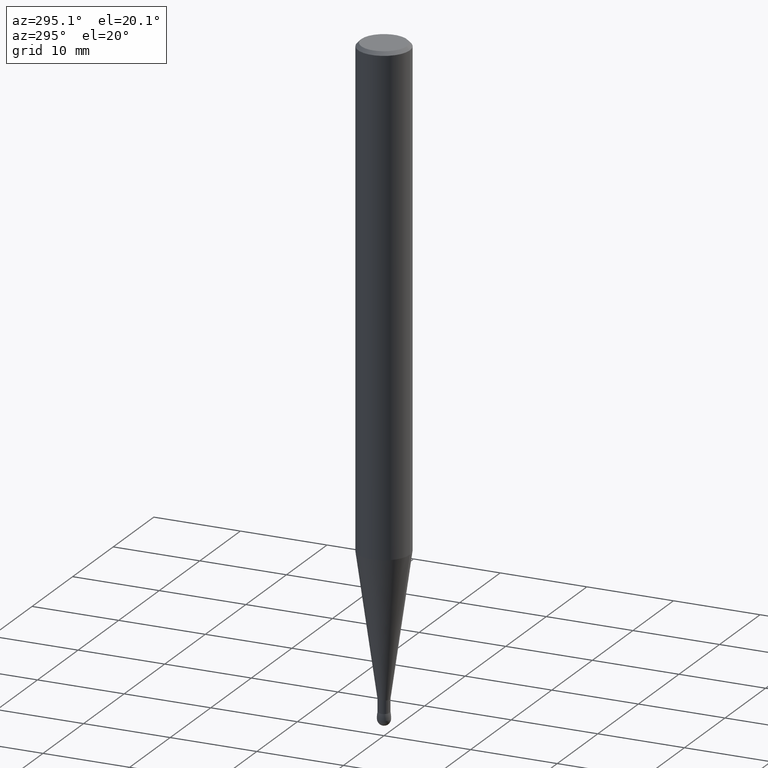
[diagram: clean part render]
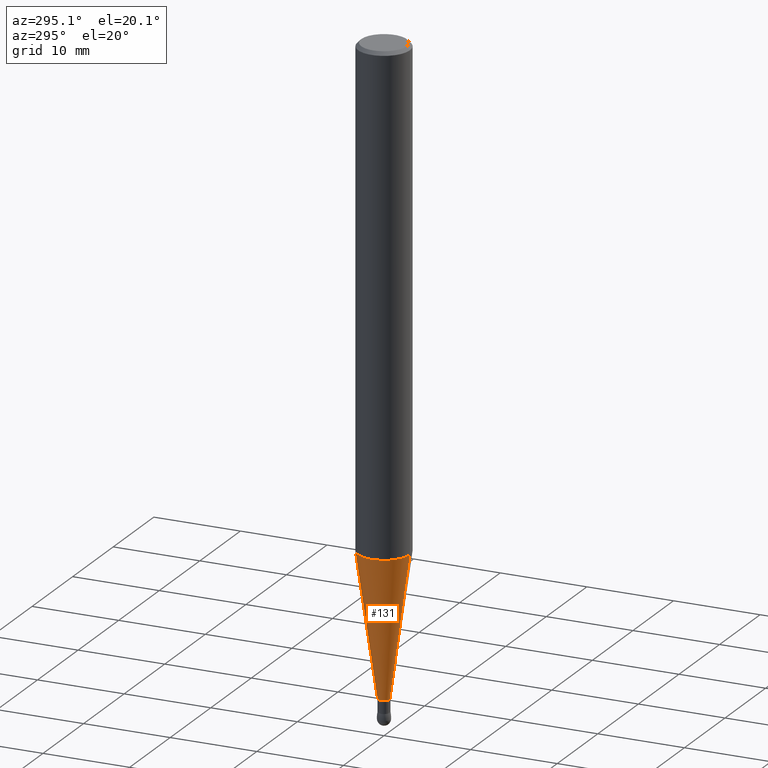
[diagram: same view with one face highlighted and labeled with its STEP entity id]
A machine part, auxiliary view. The second image highlights one B-rep face of the part: STEP entity #131.
In plain terms, the highlighted conical surface has half-angle 8 deg.
Its self-contained STEP definition (entity closure, byte-faithful):
#22 = LINE ( 'NONE', #56, #484 ) ;
#33 = DIRECTION ( 'NONE',  ( -6.982962677686265133E-15, -1.000000000000000000, 0.000000000000000000 ) ) ;
#35 = EDGE_CURVE ( 'NONE', #200, #428, #116, .T. ) ;
#43 = CARTESIAN_POINT ( 'NONE',  ( -5.066139422660767511E-16, -0.02700000000001057110, -2.874000000000000110 ) ) ;
#56 = CARTESIAN_POINT ( 'NONE',  ( -1.885399922974626539E-16, -0.02700000000001057110, -2.874000000000000110 ) ) ;
#57 = CARTESIAN_POINT ( 'NONE',  ( -8.246878922346912674E-16, -0.1181000000000074213, -2.225789818290806021 ) ) ;
#68 = CIRCLE ( 'NONE', #301, 0.1180999999999996358 ) ;
#79 = ORIENTED_EDGE ( 'NONE', *, *, #35, .F. ) ;
#94 = CARTESIAN_POINT ( 'NONE',  ( 8.391509709327297689E-16, 0.1180999999999918504, -2.225789818290806910 ) ) ;
#99 = EDGE_CURVE ( 'NONE', #361, #200, #429, .T. ) ;
#116 = LINE ( 'NONE', #325, #179 ) ;
#131 = ADVANCED_FACE ( 'NONE', ( #461 ), #205, .T. ) ;
#153 = ORIENTED_EDGE ( 'NONE', *, *, #223, .T. ) ;
#179 = VECTOR ( 'NONE', #471, 39.37007874015748143 ) ;
#200 = VERTEX_POINT ( 'NONE', #254 ) ;
#205 = CONICAL_SURFACE ( 'NONE', #221, 0.02700000000000053399, 0.1396263401595466969 ) ;
#216 = AXIS2_PLACEMENT_3D ( 'NONE', #312, #380, #456 ) ;
#221 = AXIS2_PLACEMENT_3D ( 'NONE', #378, #490, #33 ) ;
#223 = EDGE_CURVE ( 'NONE', #493, #428, #68, .T. ) ;
#254 = CARTESIAN_POINT ( 'NONE',  ( 5.154987547940153247E-16, 0.02699999999999049341, -2.874000000000000110 ) ) ;
#295 = CARTESIAN_POINT ( 'NONE',  ( 5.440542639494698700E-29, -7.774965284413110621E-15, -2.225789818290806465 ) ) ;
#301 = AXIS2_PLACEMENT_3D ( 'NONE', #295, #401, #366 ) ;
#304 = EDGE_CURVE ( 'NONE', #361, #493, #22, .T. ) ;
#309 = ORIENTED_EDGE ( 'NONE', *, *, #99, .F. ) ;
#312 = CARTESIAN_POINT ( 'NONE',  ( 7.024975771483583061E-29, -1.003924541471858020E-14, -2.874000000000000110 ) ) ;
#325 = CARTESIAN_POINT ( 'NONE',  ( 1.918465386553010530E-16, 0.02699999999999049341, -2.874000000000000110 ) ) ;
#355 = EDGE_LOOP ( 'NONE', ( #79, #309, #365, #153 ) ) ;
#361 = VERTEX_POINT ( 'NONE', #43 ) ;
#365 = ORIENTED_EDGE ( 'NONE', *, *, #304, .T. ) ;
#366 = DIRECTION ( 'NONE',  ( 6.982962677686265922E-15, 1.000000000000000000, -4.626330217890383536E-15 ) ) ;
#378 = CARTESIAN_POINT ( 'NONE',  ( 7.024975771483583061E-29, -1.003924541471858020E-14, -2.874000000000000110 ) ) ;
#380 = DIRECTION ( 'NONE',  ( 2.444320031831448722E-29, -3.493126449101802453E-15, -1.000000000000000000 ) ) ;
#401 = DIRECTION ( 'NONE',  ( 2.444320031831448722E-29, -3.493126449101802453E-15, -1.000000000000000000 ) ) ;
#409 = DIRECTION ( 'NONE',  ( -9.718405697420262401E-16, -0.1391731009600623015, 0.9902680687415706950 ) ) ;
#428 = VERTEX_POINT ( 'NONE', #94 ) ;
#429 = CIRCLE ( 'NONE', #216, 0.02700000000000053399 ) ;
#456 = DIRECTION ( 'NONE',  ( 6.982962677686265133E-15, 1.000000000000000000, 0.000000000000000000 ) ) ;
#461 = FACE_OUTER_BOUND ( 'NONE', #355, .T. ) ;
#471 = DIRECTION ( 'NONE',  ( 9.888843590037931308E-16, 0.1391731009600692404, 0.9902680687415698069 ) ) ;
#484 = VECTOR ( 'NONE', #409, 39.37007874015748854 ) ;
#490 = DIRECTION ( 'NONE',  ( -2.444320031831448722E-29, 3.493126449101802453E-15, 1.000000000000000000 ) ) ;
#493 = VERTEX_POINT ( 'NONE', #57 ) ;